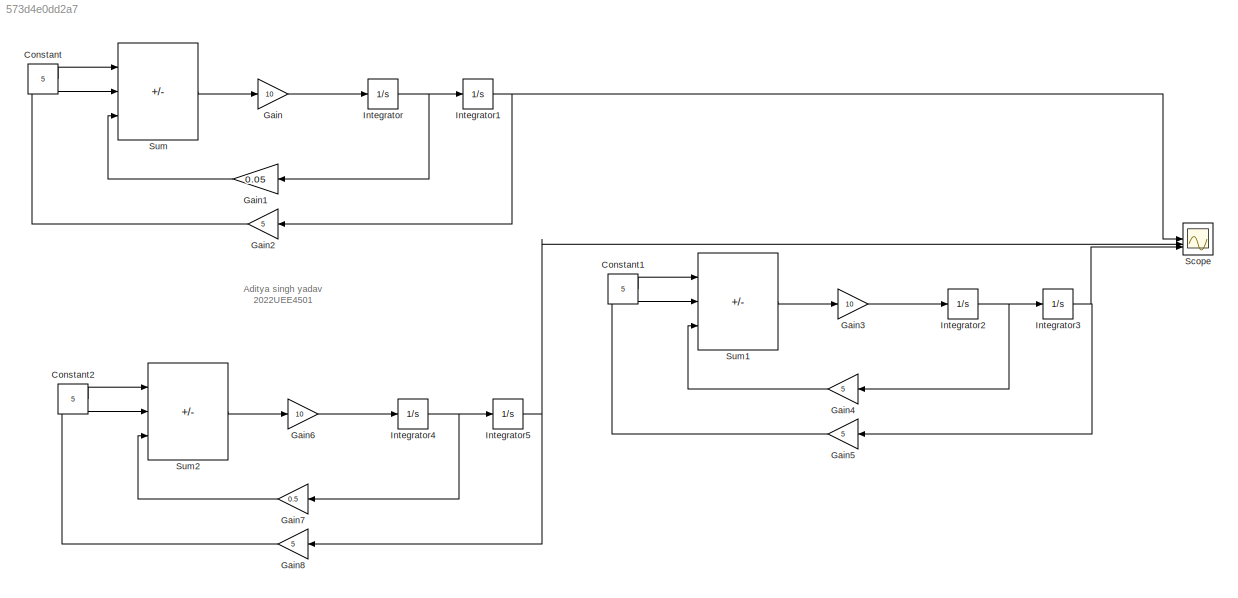
MODEL slx_573d4e0dd2a7
KIND model
CONFIG AbsTol = auto
CONFIG EnableMultiTasking = off
CONFIG FixedStep = auto
CONFIG MaxStep = auto
CONFIG MinStep = auto
CONFIG RelTol = 1e-3
CONFIG SampleTimeConstraint = Unconstrained
CONFIG SolverName = VariableStepAuto
CONFIG StartTime = 0.0
CONFIG StopTime = 10.0
BLOCK [Constant] Constant
  Value = 5
BLOCK [Constant] Constant1
  Value = 5
BLOCK [Constant] Constant2
  Value = 5
BLOCK [Gain] Gain
  Gain = 10
BLOCK [Gain] Gain1
  Gain = 0.05
  NameLocation = top
BLOCK [Gain] Gain2
  Gain = 5
  NameLocation = top
BLOCK [Gain] Gain3
  Gain = 10
BLOCK [Gain] Gain4
  Gain = 5
  NameLocation = top
BLOCK [Gain] Gain5
  Gain = 5
  NameLocation = top
BLOCK [Gain] Gain6
  Gain = 10
BLOCK [Gain] Gain7
  Gain = 0.5
  NameLocation = top
BLOCK [Gain] Gain8
  Gain = 5
  NameLocation = top
BLOCK [Integrator] Integrator
BLOCK [Integrator] Integrator1
BLOCK [Integrator] Integrator2
BLOCK [Integrator] Integrator3
BLOCK [Integrator] Integrator4
BLOCK [Integrator] Integrator5
BLOCK [Scope] Scope
  Floating = off
  NumInputPorts = 3
  ScopeSpecificationString = Simulink.scopes.TimeScopeBlockCfg('CurrentConfiguration', extmgr.ConfigurationSet(extmgr.Configuration('Core','General UI',true,'FigureColor',[1 1 1]),extmgr.Configuration('Core','Source UI',true),extmgr.Configuration('Sources','WiredSimulink',true),extmgr.Configuration('Visuals','Time Domain',true,'SerializedDisplays',{struct('MinYLimReal','-0.2357','MaxYLimReal','2.12129','YLabelReal','DISPLACEM...<+1760ch>
BLOCK [Sum] Sum
  IconShape = rectangular
  Inputs = |+--
BLOCK [Sum] Sum1
  IconShape = rectangular
  Inputs = |+--
BLOCK [Sum] Sum2
  IconShape = rectangular
  Inputs = |+--
ANNOTATION (root): Aditya singh yadav 2022UEE4501
LINE Constant1:1 -> Sum1:1
LINE Constant2:1 -> Sum2:1
LINE Constant:1 -> Sum:1
LINE Gain1:1 -> Sum:3
LINE Gain2:1 -> Sum:2
LINE Gain3:1 -> Integrator2:1
LINE Gain4:1 -> Sum1:3
LINE Gain5:1 -> Sum1:2
LINE Gain6:1 -> Integrator4:1
LINE Gain7:1 -> Sum2:3
LINE Gain8:1 -> Sum2:2
LINE Gain:1 -> Integrator:1
NET Integrator1:1 -> Gain2:1, Scope:1
NET Integrator2:1 -> Gain4:1, Integrator3:1
NET Integrator3:1 -> Gain5:1, Scope:3
NET Integrator4:1 -> Gain7:1, Integrator5:1
NET Integrator5:1 -> Gain8:1, Scope:2
NET Integrator:1 -> Gain1:1, Integrator1:1
LINE Sum1:1 -> Gain3:1
LINE Sum2:1 -> Gain6:1
LINE Sum:1 -> Gain:1
note: NET lines group one-source signal fan-out (src -> all destinations, sorted); 1:1 wires keep LINE
